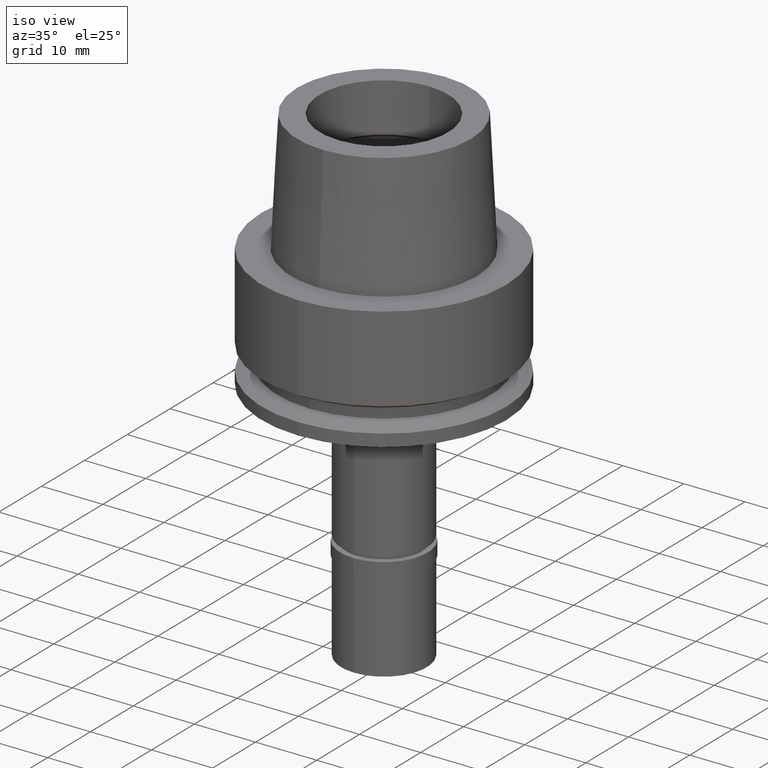
[diagram: clean part render]
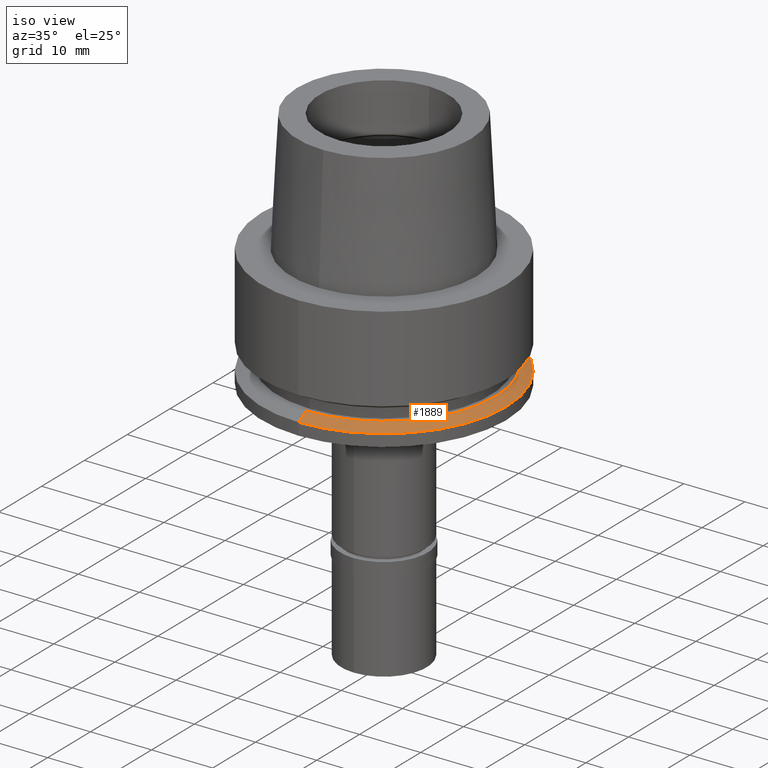
[diagram: same view with one face highlighted and labeled with its STEP entity id]
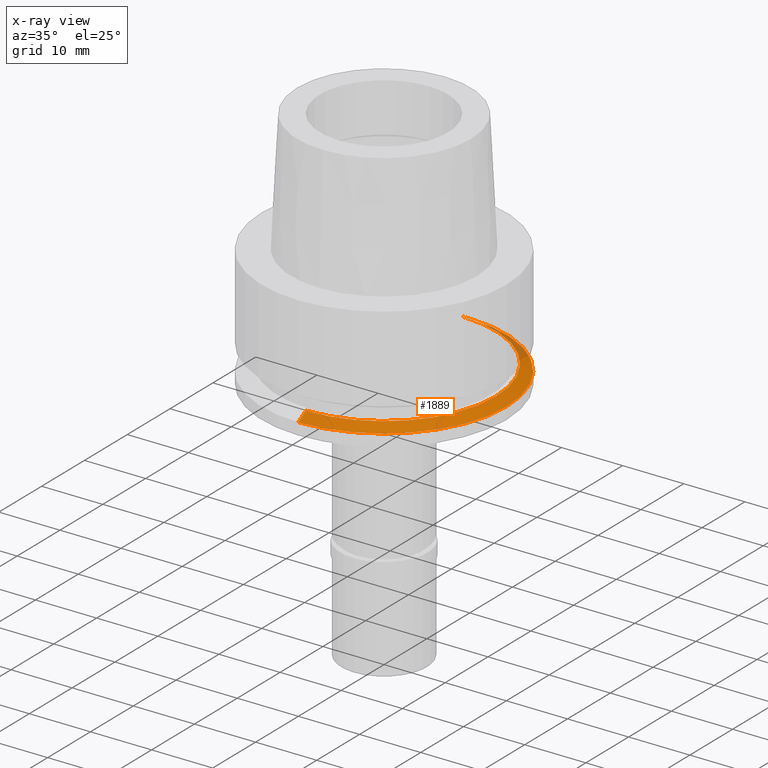
[diagram: x-ray of the same camera — body ghosted, the highlighted face saturated]
A machine part, iso view. The second image highlights one B-rep face of the part: STEP entity #1889.
The next image is the same camera in x-ray: the body ghosted, the highlighted face saturated — about 6% of this face is hidden behind the body in this view.
In plain terms, the highlighted conical surface has half-angle 60 deg.
Its self-contained STEP definition (entity closure, byte-faithful):
#120 = CARTESIAN_POINT ( 'NONE',  ( 0.0000000000000000000, 0.0000000000000000000, -18.02072594461999699 ) ) ;
#228 = CARTESIAN_POINT ( 'NONE',  ( 0.0000000000000000000, 18.23205080331999994, -17.00000000000000000 ) ) ;
#238 = CONICAL_SURFACE ( 'NONE', #1360, 19.11602540165999997, 1.047197551196400456 ) ;
#332 = AXIS2_PLACEMENT_3D ( 'NONE', #120, #1363, #944 ) ;
#335 = CARTESIAN_POINT ( 'NONE',  ( 0.0000000000000000000, 20.00000000000000000, -18.02072594461999699 ) ) ;
#406 = EDGE_CURVE ( 'NONE', #1679, #1276, #2144, .T. ) ;
#411 = DIRECTION ( 'NONE',  ( 0.0000000000000000000, 0.8660254037841628172, -0.5000000000004778400 ) ) ;
#425 = ORIENTED_EDGE ( 'NONE', *, *, #503, .T. ) ;
#503 = EDGE_CURVE ( 'NONE', #1276, #2380, #1447, .T. ) ;
#584 = VERTEX_POINT ( 'NONE', #335 ) ;
#717 = CARTESIAN_POINT ( 'NONE',  ( 0.0000000000000000000, -20.00000000000000000, -18.02072594461999699 ) ) ;
#811 = EDGE_CURVE ( 'NONE', #1679, #584, #2505, .T. ) ;
#944 = DIRECTION ( 'NONE',  ( 0.0000000000000000000, 1.000000000000000000, 0.0000000000000000000 ) ) ;
#997 = CARTESIAN_POINT ( 'NONE',  ( 0.0000000000000000000, 0.0000000000000000000, -17.51036297230999850 ) ) ;
#1010 = CARTESIAN_POINT ( 'NONE',  ( 0.0000000000000000000, -18.23205080331999994, -17.00000000000000000 ) ) ;
#1050 = ORIENTED_EDGE ( 'NONE', *, *, #2675, .F. ) ;
#1113 = CARTESIAN_POINT ( 'NONE',  ( 0.0000000000000000000, 18.23205080331999994, -17.00000000000000000 ) ) ;
#1207 = FACE_OUTER_BOUND ( 'NONE', #1498, .T. ) ;
#1232 = DIRECTION ( 'NONE',  ( 0.0000000000000000000, 1.000000000000000000, 0.0000000000000000000 ) ) ;
#1276 = VERTEX_POINT ( 'NONE', #1375 ) ;
#1325 = ORIENTED_EDGE ( 'NONE', *, *, #811, .F. ) ;
#1360 = AXIS2_PLACEMENT_3D ( 'NONE', #997, #2676, #1827 ) ;
#1363 = DIRECTION ( 'NONE',  ( 0.0000000000000000000, 0.0000000000000000000, -1.000000000000000000 ) ) ;
#1375 = CARTESIAN_POINT ( 'NONE',  ( 0.0000000000000000000, -18.23205080331999994, -17.00000000000000000 ) ) ;
#1447 = LINE ( 'NONE', #1010, #1670 ) ;
#1498 = EDGE_LOOP ( 'NONE', ( #1690, #425, #1050, #1325 ) ) ;
#1534 = VECTOR ( 'NONE', #411, 999.9999999999998863 ) ;
#1670 = VECTOR ( 'NONE', #1732, 999.9999999999998863 ) ;
#1679 = VERTEX_POINT ( 'NONE', #1113 ) ;
#1690 = ORIENTED_EDGE ( 'NONE', *, *, #406, .T. ) ;
#1732 = DIRECTION ( 'NONE',  ( 0.0000000000000000000, -0.8660254037841628172, -0.5000000000004778400 ) ) ;
#1827 = DIRECTION ( 'NONE',  ( 0.0000000000000000000, -1.000000000000000000, 0.0000000000000000000 ) ) ;
#1844 = CARTESIAN_POINT ( 'NONE',  ( 0.0000000000000000000, 0.0000000000000000000, -17.00000000000000000 ) ) ;
#1889 = ADVANCED_FACE ( 'NONE', ( #1207 ), #238, .T. ) ;
#2094 = AXIS2_PLACEMENT_3D ( 'NONE', #1844, #2479, #1232 ) ;
#2144 = CIRCLE ( 'NONE', #2094, 18.23205080331999994 ) ;
#2210 = CIRCLE ( 'NONE', #332, 20.00000000000000000 ) ;
#2380 = VERTEX_POINT ( 'NONE', #717 ) ;
#2479 = DIRECTION ( 'NONE',  ( 0.0000000000000000000, 0.0000000000000000000, -1.000000000000000000 ) ) ;
#2505 = LINE ( 'NONE', #228, #1534 ) ;
#2675 = EDGE_CURVE ( 'NONE', #584, #2380, #2210, .T. ) ;
#2676 = DIRECTION ( 'NONE',  ( 0.0000000000000000000, 0.0000000000000000000, -1.000000000000000000 ) ) ;